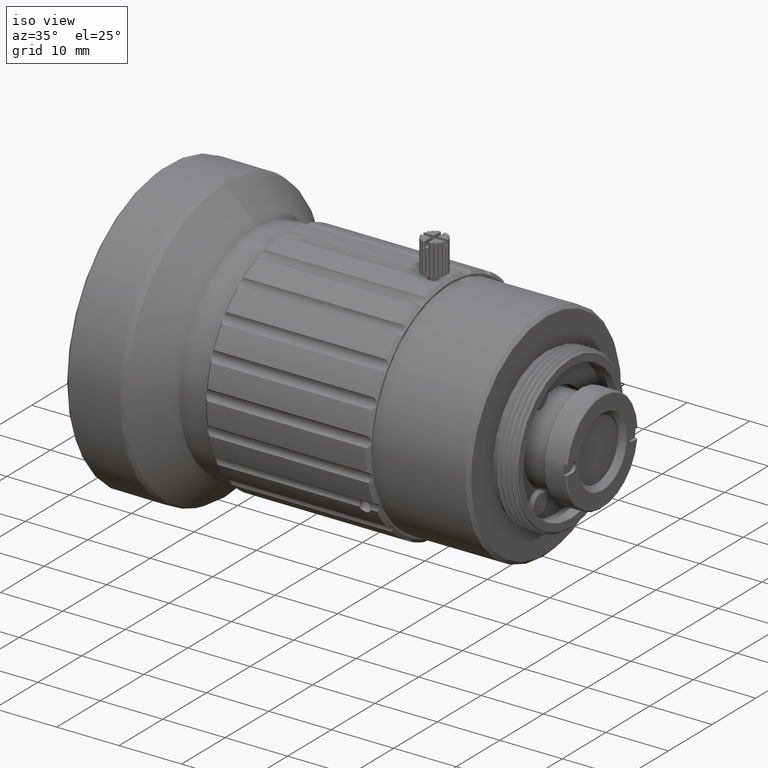
[diagram: clean part render]
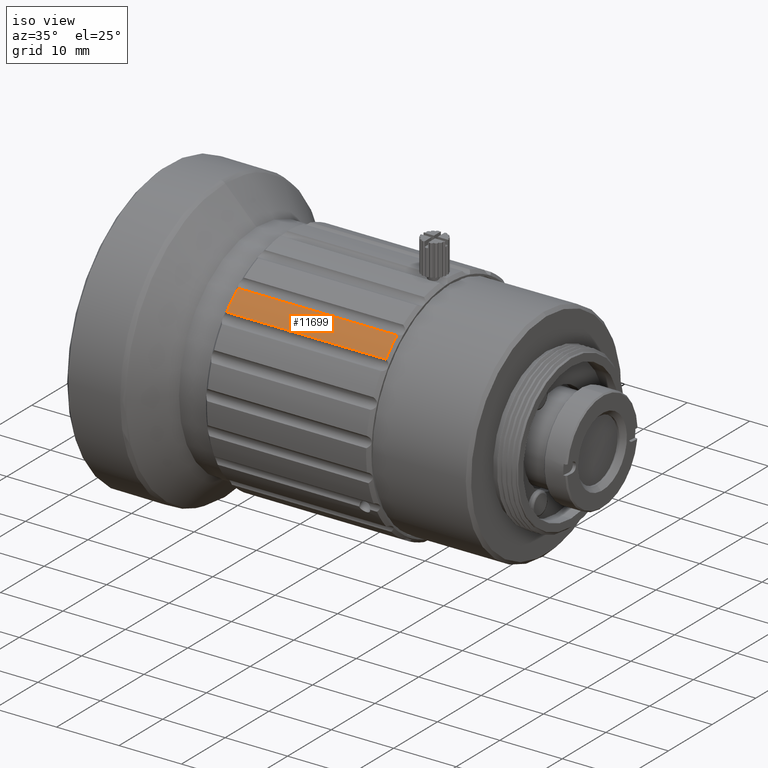
[diagram: same view with one face highlighted and labeled with its STEP entity id]
A machine part, iso view. The second image highlights one B-rep face of the part: STEP entity #11699.
In plain terms, the highlighted cylindrical surface (partial cylindrical patch) has radius 18.5 mm, axis along (1, 0, 0).
Its self-contained STEP definition (entity closure, byte-faithful):
#199 = DIRECTION ( 'NONE',  ( 1.000000000000000000, 5.196204194268909120E-18, 1.232595164407830946E-32 ) ) ;
#949 = CARTESIAN_POINT ( 'NONE',  ( 50.20457836348905545, -1.808066145625022880, 68.24071780503437878 ) ) ;
#1289 = VERTEX_POINT ( 'NONE', #9908 ) ;
#1390 = CIRCLE ( 'NONE', #7434, 18.50000000000669687 ) ;
#1659 = EDGE_CURVE ( 'NONE', #4673, #6085, #5442, .T. ) ;
#2169 = CYLINDRICAL_SURFACE ( 'NONE', #12032, 18.50000000000669687 ) ;
#2575 = DIRECTION ( 'NONE',  ( 0.000000000000000000, 0.8660254037844363761, -0.5000000000000038858 ) ) ;
#3474 = VERTEX_POINT ( 'NONE', #7619 ) ;
#3778 = DIRECTION ( 'NONE',  ( -1.000000000000000000, -5.196204194268909120E-18, -1.232595164407830946E-32 ) ) ;
#4673 = VERTEX_POINT ( 'NONE', #10750 ) ;
#4780 = ORIENTED_EDGE ( 'NONE', *, *, #10877, .T. ) ;
#4921 = ORIENTED_EDGE ( 'NONE', *, *, #1659, .F. ) ;
#5442 = CIRCLE ( 'NONE', #11207, 18.50000000000661515 ) ;
#5715 = DIRECTION ( 'NONE',  ( 1.000000000000000000, 5.196204194268909120E-18, 1.232595164407830946E-32 ) ) ;
#6085 = VERTEX_POINT ( 'NONE', #9300 ) ;
#6214 = CARTESIAN_POINT ( 'NONE',  ( -20.70405292198536529, -1.808066145625023102, 68.24071780503437878 ) ) ;
#6647 = EDGE_LOOP ( 'NONE', ( #8250, #11255, #4921, #4780 ) ) ;
#7175 = DIRECTION ( 'NONE',  ( 0.000000000000000000, 0.8660254037844364872, -0.5000000000000038858 ) ) ;
#7434 = AXIS2_PLACEMENT_3D ( 'NONE', #9500, #3778, #7175 ) ;
#7619 = CARTESIAN_POINT ( 'NONE',  ( 4.795947078014048515, -15.80642464500120070, 80.33600446237289816 ) ) ;
#8098 = DIRECTION ( 'NONE',  ( -1.000000000000000000, -5.196204194268909120E-18, -1.232595164407830946E-32 ) ) ;
#8250 = ORIENTED_EDGE ( 'NONE', *, *, #9339, .T. ) ;
#8955 = LINE ( 'NONE', #9025, #12850 ) ;
#9025 = CARTESIAN_POINT ( 'NONE',  ( 50.20457836348905545, -15.80642464500120781, 80.33600446237286974 ) ) ;
#9300 = CARTESIAN_POINT ( 'NONE',  ( -20.70405292198535818, -13.22358422990851601, 82.79873782382962588 ) ) ;
#9339 = EDGE_CURVE ( 'NONE', #3474, #1289, #1390, .T. ) ;
#9500 = CARTESIAN_POINT ( 'NONE',  ( 4.795947078014020093, -1.808066145625022880, 68.24071780503437878 ) ) ;
#9908 = CARTESIAN_POINT ( 'NONE',  ( 4.795947078014044962, -13.22358422990857285, 82.79873782382965430 ) ) ;
#10133 = LINE ( 'NONE', #14892, #14061 ) ;
#10159 = DIRECTION ( 'NONE',  ( 0.000000000000000000, 0.8660254037844364872, -0.5000000000000038858 ) ) ;
#10750 = CARTESIAN_POINT ( 'NONE',  ( -20.70405292198535818, -15.80642464500117761, 80.33600446237284132 ) ) ;
#10877 = EDGE_CURVE ( 'NONE', #4673, #3474, #8955, .T. ) ;
#11198 = EDGE_CURVE ( 'NONE', #1289, #6085, #10133, .T. ) ;
#11207 = AXIS2_PLACEMENT_3D ( 'NONE', #6214, #14268, #2575 ) ;
#11255 = ORIENTED_EDGE ( 'NONE', *, *, #11198, .T. ) ;
#11699 = ADVANCED_FACE ( 'NONE', ( #13851 ), #2169, .T. ) ;
#12032 = AXIS2_PLACEMENT_3D ( 'NONE', #949, #5715, #10159 ) ;
#12850 = VECTOR ( 'NONE', #199, 1000.000000000000000 ) ;
#13851 = FACE_OUTER_BOUND ( 'NONE', #6647, .T. ) ;
#14061 = VECTOR ( 'NONE', #8098, 1000.000000000000000 ) ;
#14268 = DIRECTION ( 'NONE',  ( -1.000000000000000000, -5.196204194268909120E-18, -1.232595164407830946E-32 ) ) ;
#14892 = CARTESIAN_POINT ( 'NONE',  ( 50.20457836348905545, -13.22358422990855331, 82.79873782382964009 ) ) ;